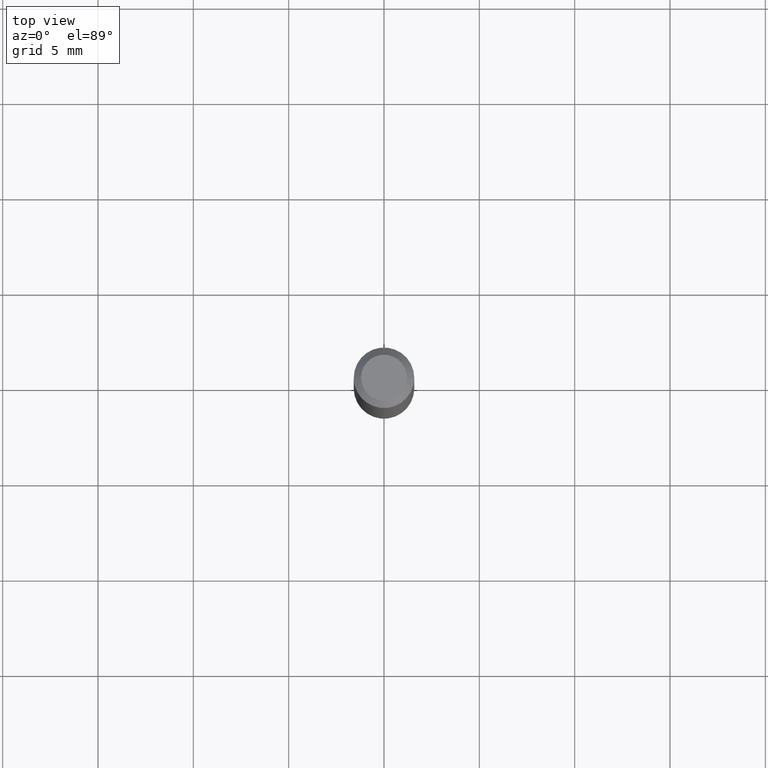
[diagram: clean part render]
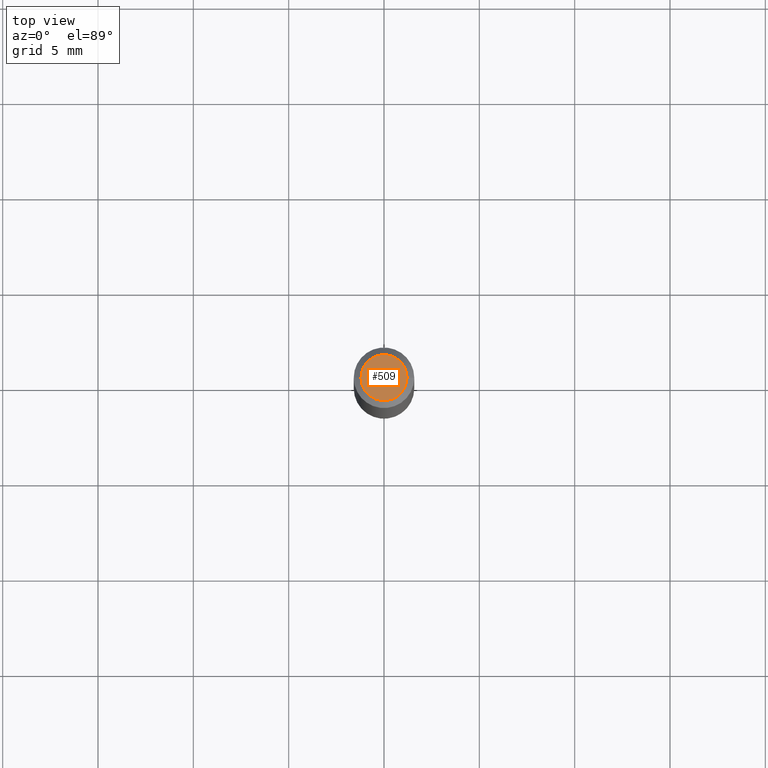
[diagram: same view with one face highlighted and labeled with its STEP entity id]
A machine part, top view. The second image highlights one B-rep face of the part: STEP entity #509.
In plain terms, the highlighted planar face has unit normal (0, -0, -1).
Its self-contained STEP definition (entity closure, byte-faithful):
#77 = AXIS2_PLACEMENT_3D ( 'NONE', #499, #446, #174 ) ;
#101 = CARTESIAN_POINT ( 'NONE',  ( -6.680649051745406845E-45, 9.538196290434862081E-31, 2.731847993664263218E-16 ) ) ;
#116 = EDGE_LOOP ( 'NONE', ( #312, #363 ) ) ;
#148 = EDGE_CURVE ( 'NONE', #347, #351, #173, .T. ) ;
#169 = DIRECTION ( 'NONE',  ( 2.438088387897960049E-29, -3.491481338843145188E-15, -1.000000000000000000 ) ) ;
#173 = CIRCLE ( 'NONE', #77, 0.04750000000000000749 ) ;
#174 = DIRECTION ( 'NONE',  ( 1.000000000000000000, -6.982962677686266711E-15, 4.852736867747365086E-29 ) ) ;
#181 = CARTESIAN_POINT ( 'NONE',  ( 0.04750000000000000749, -4.035134999187568762E-16, 2.731847993664288856E-16 ) ) ;
#191 = CIRCLE ( 'NONE', #287, 0.04750000000000000749 ) ;
#205 = FACE_OUTER_BOUND ( 'NONE', #116, .T. ) ;
#210 = EDGE_CURVE ( 'NONE', #351, #347, #191, .T. ) ;
#249 = DIRECTION ( 'NONE',  ( -2.445468806185136597E-29, 3.491481338843145583E-15, 1.000000000000000000 ) ) ;
#256 = DIRECTION ( 'NONE',  ( 1.000000000000000000, -6.982962677686266711E-15, 4.852736867747365086E-29 ) ) ;
#287 = AXIS2_PLACEMENT_3D ( 'NONE', #101, #249, #256 ) ;
#312 = ORIENTED_EDGE ( 'NONE', *, *, #210, .T. ) ;
#326 = DIRECTION ( 'NONE',  ( -1.000000000000000000, 6.982962677686265922E-15, -4.876176775795935793E-29 ) ) ;
#347 = VERTEX_POINT ( 'NONE', #181 ) ;
#351 = VERTEX_POINT ( 'NONE', #508 ) ;
#362 = PLANE ( 'NONE',  #376 ) ;
#363 = ORIENTED_EDGE ( 'NONE', *, *, #148, .T. ) ;
#366 = CARTESIAN_POINT ( 'NONE',  ( 3.316907271900976589E-16, 0.04750000000000000749, -2.925296391183627249E-17 ) ) ;
#376 = AXIS2_PLACEMENT_3D ( 'NONE', #366, #169, #326 ) ;
#446 = DIRECTION ( 'NONE',  ( -2.445468806185136597E-29, 3.491481338843145583E-15, 1.000000000000000000 ) ) ;
#499 = CARTESIAN_POINT ( 'NONE',  ( -6.680649051745406845E-45, 9.538196290434862081E-31, 2.731847993664263218E-16 ) ) ;
#508 = CARTESIAN_POINT ( 'NONE',  ( -0.04750000000000000749, 3.578768372314221353E-16, 2.731847993664239060E-16 ) ) ;
#509 = ADVANCED_FACE ( 'NONE', ( #205 ), #362, .F. ) ;